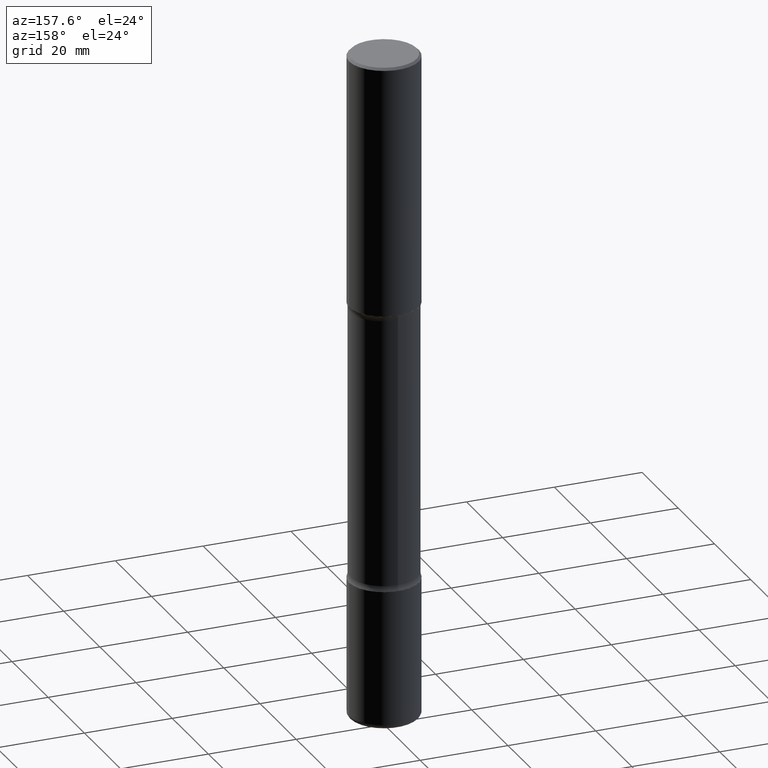
[diagram: clean part render]
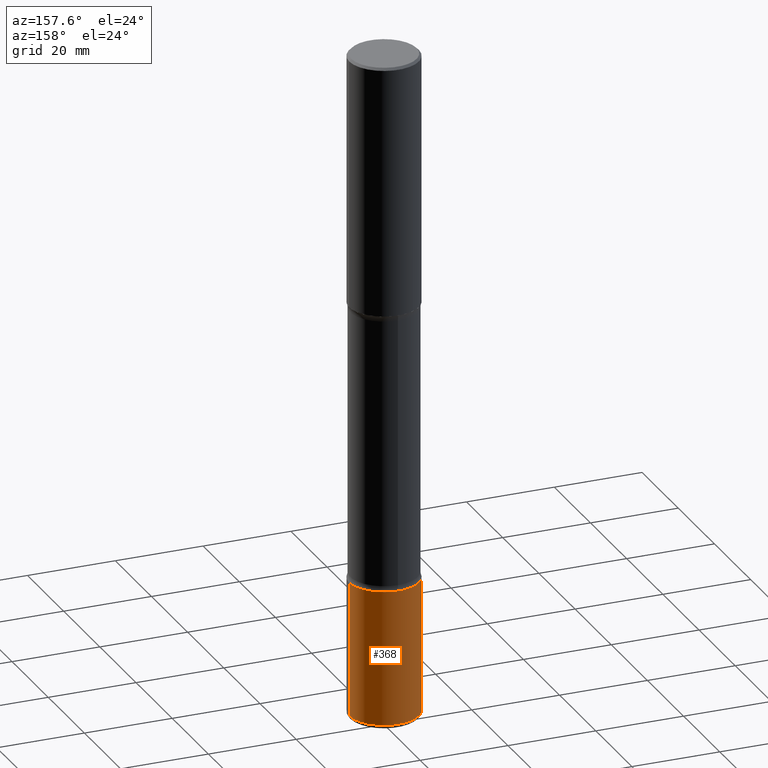
[diagram: same view with one face highlighted and labeled with its STEP entity id]
A machine part, auxiliary view. The second image highlights one B-rep face of the part: STEP entity #368.
In plain terms, the highlighted cylindrical surface (partial cylindrical patch) has radius 7.9375 mm, axis along (-0, 0, 1).
Its self-contained STEP definition (entity closure, byte-faithful):
#1 = DIRECTION ( 'NONE',  ( -2.445468806185136597E-29, 3.491481338843145583E-15, 1.000000000000000000 ) ) ;
#5 = CARTESIAN_POINT ( 'NONE',  ( 0.3124999999999998890, -2.299140461628210919E-14, -5.960000000000000853 ) ) ;
#49 = VERTEX_POINT ( 'NONE', #282 ) ;
#51 = ORIENTED_EDGE ( 'NONE', *, *, #285, .T. ) ;
#52 = LINE ( 'NONE', #136, #491 ) ;
#76 = LINE ( 'NONE', #331, #174 ) ;
#85 = CARTESIAN_POINT ( 'NONE',  ( 1.161597682937939659E-28, -1.658453635950493708E-14, -4.749999999999999112 ) ) ;
#101 = DIRECTION ( 'NONE',  ( 1.000000000000000000, -6.982962677686270655E-15, 0.000000000000000000 ) ) ;
#102 = EDGE_CURVE ( 'NONE', #409, #382, #361, .T. ) ;
#124 = ORIENTED_EDGE ( 'NONE', *, *, #102, .T. ) ;
#127 = VERTEX_POINT ( 'NONE', #355 ) ;
#136 = CARTESIAN_POINT ( 'NONE',  ( 0.3125000000000002220, -2.182175836776959925E-15, 1.523805242436231196E-29 ) ) ;
#144 = AXIS2_PLACEMENT_3D ( 'NONE', #521, #1, #225 ) ;
#163 = CIRCLE ( 'NONE', #183, 0.3125000000000002220 ) ;
#173 = CYLINDRICAL_SURFACE ( 'NONE', #144, 0.3125000000000002220 ) ;
#174 = VECTOR ( 'NONE', #408, 39.37007874015748143 ) ;
#183 = AXIS2_PLACEMENT_3D ( 'NONE', #85, #300, #230 ) ;
#225 = DIRECTION ( 'NONE',  ( 1.000000000000000000, -6.982962677686266711E-15, 4.876176775795936353E-29 ) ) ;
#230 = DIRECTION ( 'NONE',  ( 1.000000000000000000, -6.982962677686264344E-15, 0.000000000000000000 ) ) ;
#234 = AXIS2_PLACEMENT_3D ( 'NONE', #493, #532, #101 ) ;
#282 = CARTESIAN_POINT ( 'NONE',  ( -0.3125000000000002220, -1.647643652025473009E-14, -4.749999999999999112 ) ) ;
#285 = EDGE_CURVE ( 'NONE', #382, #49, #76, .T. ) ;
#300 = DIRECTION ( 'NONE',  ( -2.445468806185136597E-29, 3.491481338843145583E-15, 1.000000000000000000 ) ) ;
#331 = CARTESIAN_POINT ( 'NONE',  ( -0.3125000000000002220, 2.220446049250314659E-15, -1.537167215704659073E-29 ) ) ;
#355 = CARTESIAN_POINT ( 'NONE',  ( 0.3125000000000002220, -1.876671219628189700E-14, -4.749999999999999112 ) ) ;
#361 = CIRCLE ( 'NONE', #234, 0.3125000000000002220 ) ;
#368 = ADVANCED_FACE ( 'NONE', ( #428 ), #173, .T. ) ;
#382 = VERTEX_POINT ( 'NONE', #465 ) ;
#386 = DIRECTION ( 'NONE',  ( -2.445468806185136877E-29, 3.491481338843145188E-15, 1.000000000000000000 ) ) ;
#394 = EDGE_CURVE ( 'NONE', #127, #49, #163, .T. ) ;
#401 = EDGE_LOOP ( 'NONE', ( #124, #51, #432, #520 ) ) ;
#406 = EDGE_CURVE ( 'NONE', #409, #127, #52, .T. ) ;
#408 = DIRECTION ( 'NONE',  ( -2.445468806185136877E-29, 3.491481338843145188E-15, 1.000000000000000000 ) ) ;
#409 = VERTEX_POINT ( 'NONE', #5 ) ;
#428 = FACE_OUTER_BOUND ( 'NONE', #401, .T. ) ;
#432 = ORIENTED_EDGE ( 'NONE', *, *, #394, .F. ) ;
#465 = CARTESIAN_POINT ( 'NONE',  ( -0.3124999999999998890, -1.858878273025483934E-14, -5.960000000000000853 ) ) ;
#491 = VECTOR ( 'NONE', #386, 39.37007874015748143 ) ;
#493 = CARTESIAN_POINT ( 'NONE',  ( 1.457499408486341564E-28, -2.080922877950515242E-14, -5.960000000000000853 ) ) ;
#520 = ORIENTED_EDGE ( 'NONE', *, *, #406, .F. ) ;
#521 = CARTESIAN_POINT ( 'NONE',  ( 0.000000000000000000, 0.000000000000000000, 0.000000000000000000 ) ) ;
#532 = DIRECTION ( 'NONE',  ( -2.445468806185136597E-29, 3.491481338843145583E-15, 1.000000000000000000 ) ) ;